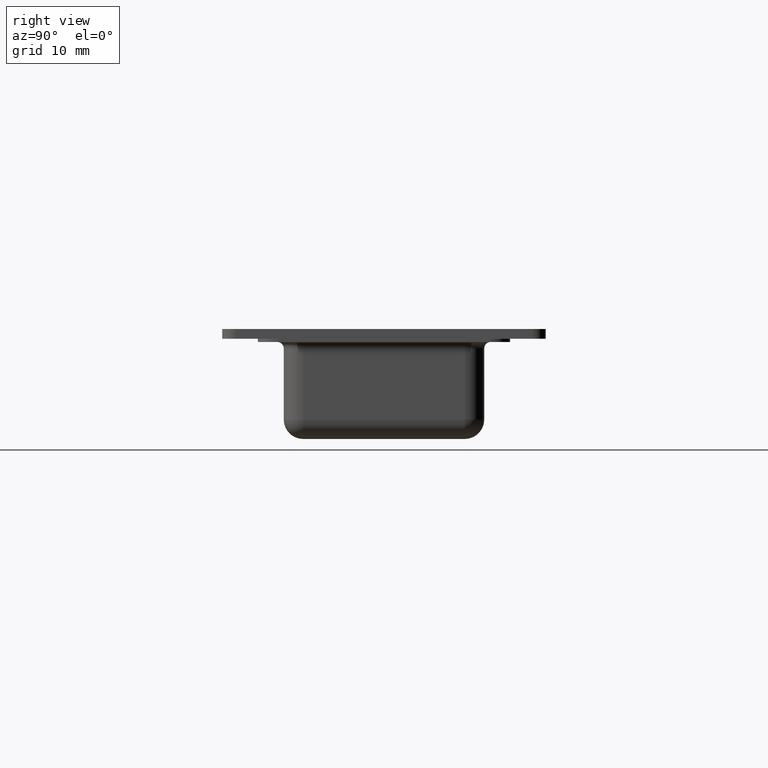
[diagram: clean part render]
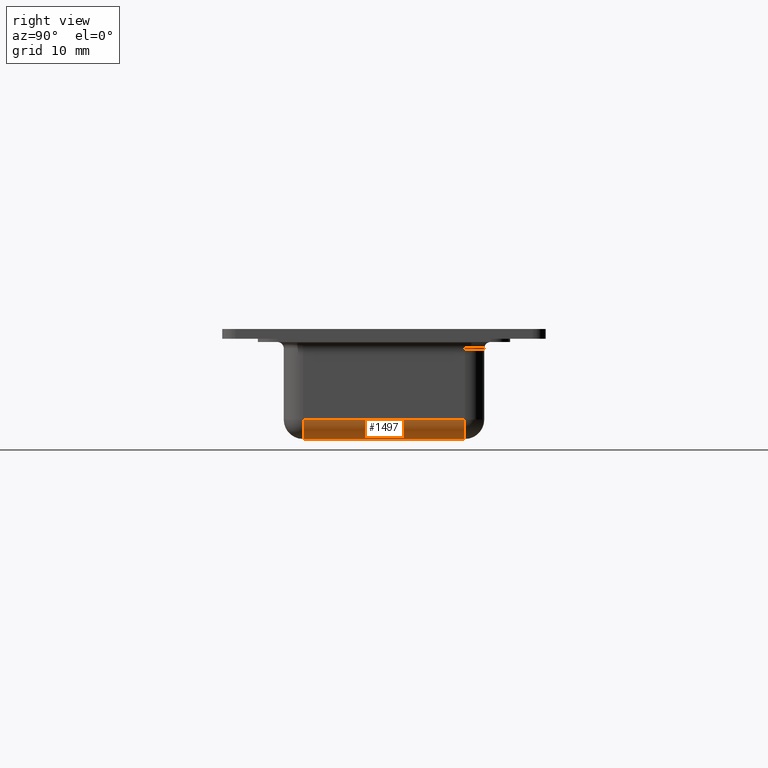
[diagram: same view with one face highlighted and labeled with its STEP entity id]
A machine part, right view. The second image highlights one B-rep face of the part: STEP entity #1497.
In plain terms, the highlighted cylindrical surface (edge-blend (fillet) strip) has radius 3 mm, axis along (0, -1, 0).
Its self-contained STEP definition (entity closure, byte-faithful):
#92=CYLINDRICAL_SURFACE('',#1678,3.);
#197=LINE('',#2802,#305);
#198=LINE('',#2805,#306);
#305=VECTOR('',#2135,25.);
#306=VECTOR('',#2138,25.);
#425=FACE_OUTER_BOUND('',#539,.T.);
#539=EDGE_LOOP('',(#1363,#1364,#1365,#1366));
#639=CIRCLE('',#1679,3.);
#640=CIRCLE('',#1680,3.);
#778=VERTEX_POINT('',#2798);
#779=VERTEX_POINT('',#2799);
#780=VERTEX_POINT('',#2801);
#781=VERTEX_POINT('',#2803);
#976=EDGE_CURVE('',#778,#779,#639,.T.);
#977=EDGE_CURVE('',#779,#780,#197,.T.);
#978=EDGE_CURVE('',#780,#781,#640,.T.);
#979=EDGE_CURVE('',#781,#778,#198,.T.);
#1363=ORIENTED_EDGE('',*,*,#976,.T.);
#1364=ORIENTED_EDGE('',*,*,#977,.T.);
#1365=ORIENTED_EDGE('',*,*,#978,.T.);
#1366=ORIENTED_EDGE('',*,*,#979,.T.);
#1497=ADVANCED_FACE('',(#425),#92,.T.);
#1678=AXIS2_PLACEMENT_3D('',#2797,#2131,#2132);
#1679=AXIS2_PLACEMENT_3D('',#2800,#2133,#2134);
#1680=AXIS2_PLACEMENT_3D('',#2804,#2136,#2137);
#2131=DIRECTION('center_axis',(0.,-1.,0.));
#2132=DIRECTION('ref_axis',(0.707106781186547,0.,-0.707106781186547));
#2133=DIRECTION('center_axis',(0.,-1.,0.));
#2134=DIRECTION('ref_axis',(0.,0.,-1.));
#2135=DIRECTION('',(0.,-1.,0.));
#2136=DIRECTION('center_axis',(0.,1.,0.));
#2137=DIRECTION('ref_axis',(1.,0.,0.));
#2138=DIRECTION('',(0.,1.,0.));
#2797=CARTESIAN_POINT('Origin',(33.25,-7.74999999999999,-12.5));
#2798=CARTESIAN_POINT('',(33.25,12.5,-15.5));
#2799=CARTESIAN_POINT('',(36.25,12.5,-12.5));
#2800=CARTESIAN_POINT('Origin',(33.25,12.5,-12.5));
#2801=CARTESIAN_POINT('',(36.25,-12.5,-12.5));
#2802=CARTESIAN_POINT('',(36.25,-7.74999999999999,-12.5));
#2803=CARTESIAN_POINT('',(33.25,-12.5,-15.5));
#2804=CARTESIAN_POINT('Origin',(33.25,-12.5,-12.5));
#2805=CARTESIAN_POINT('',(33.25,-7.74999999999999,-15.5));